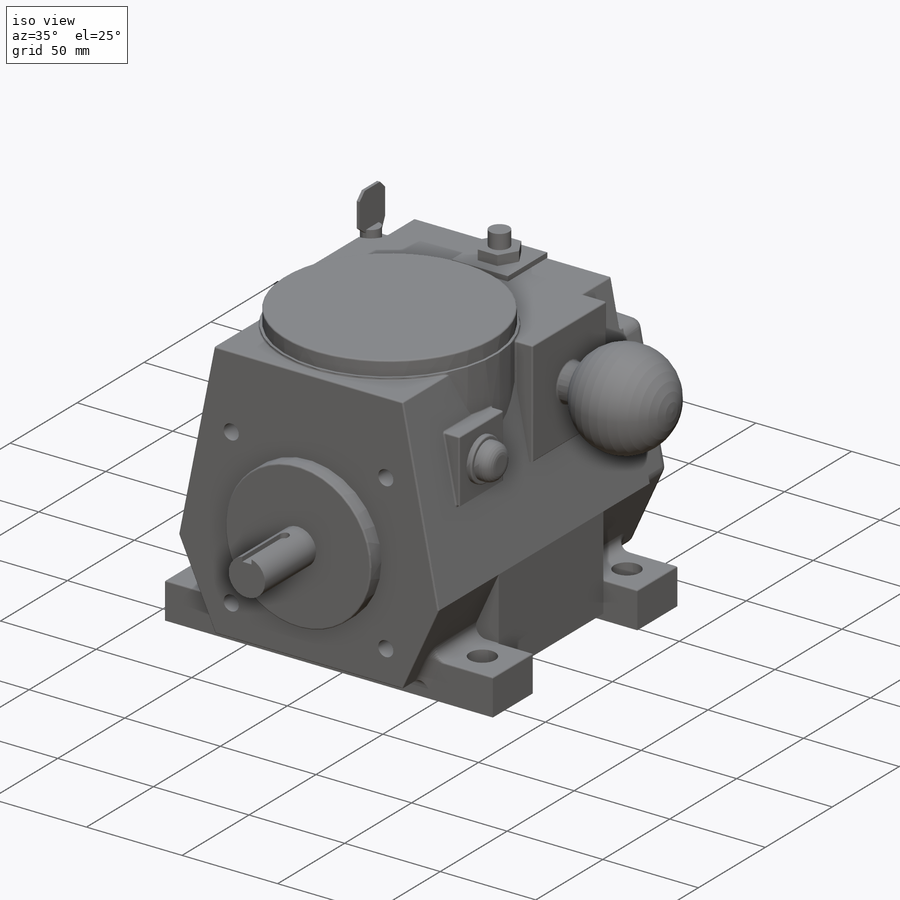
[diagram: iso view]
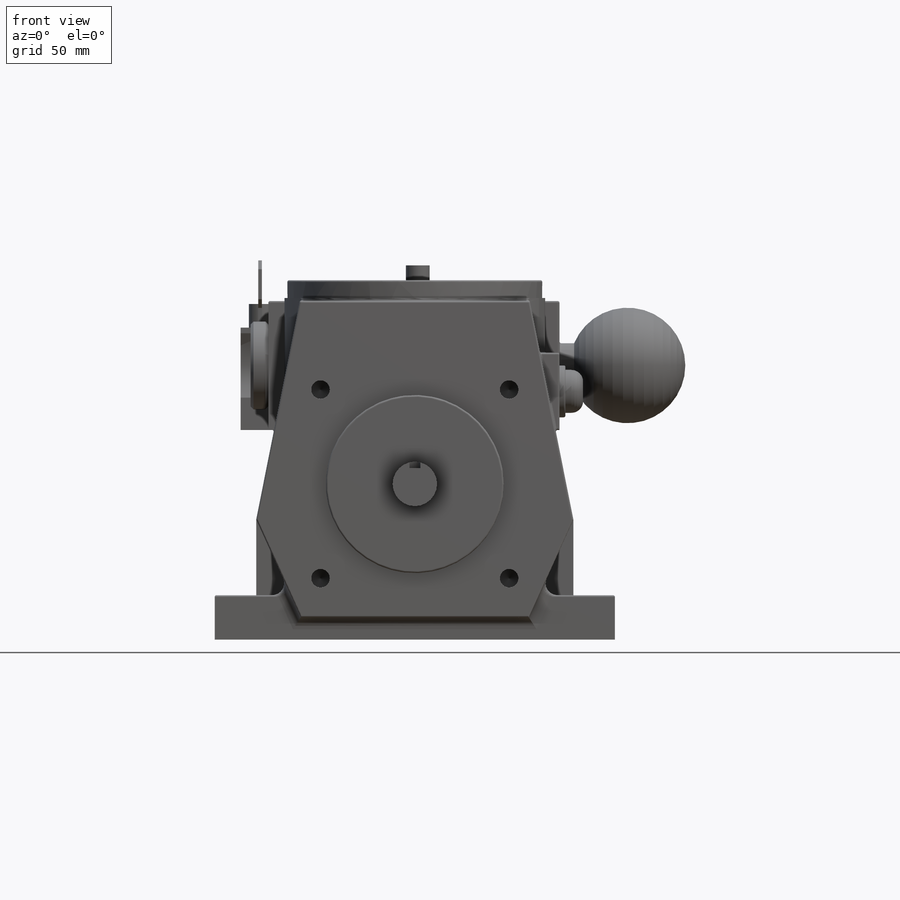
[diagram: front view]
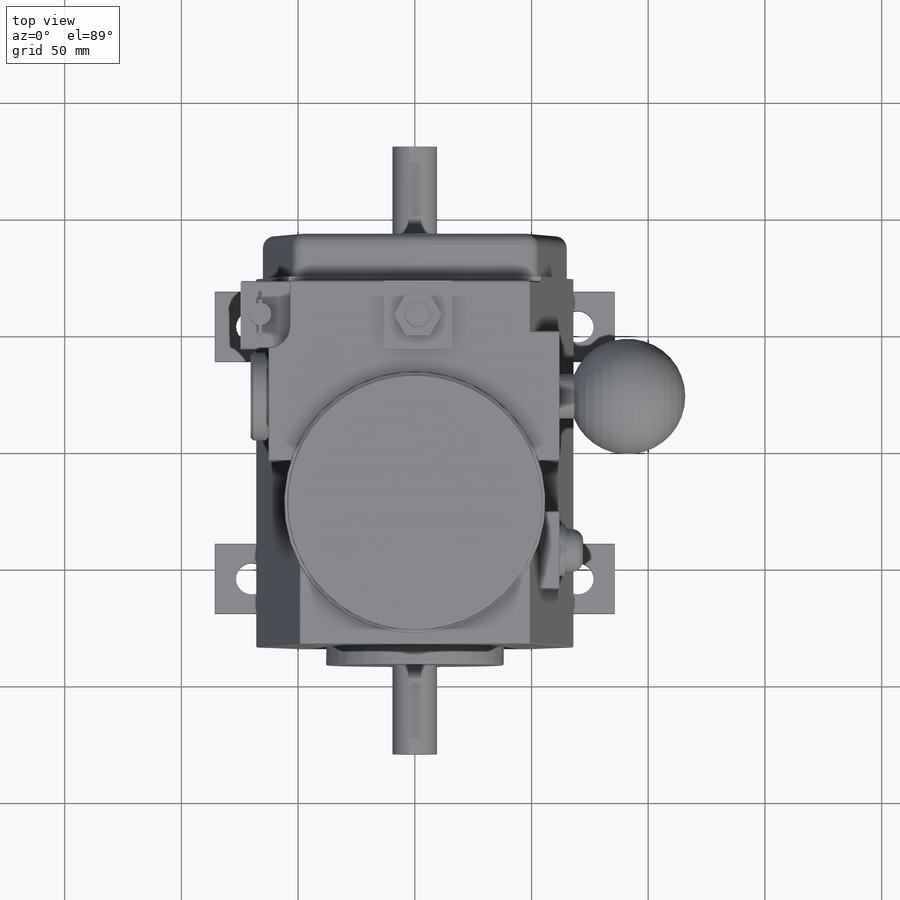
[diagram: top view]
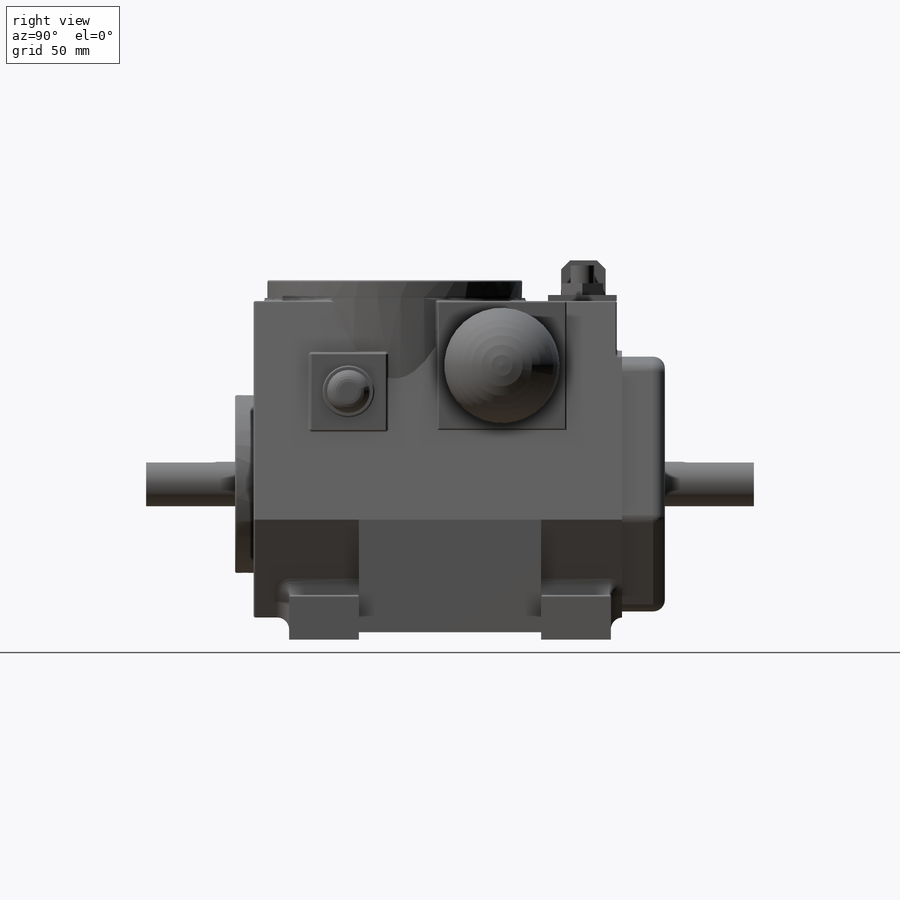
[diagram: right view]
SOLIDWORKS PART (.sldprt)
format: sldprt  version: not decoded by parser v0  size: 1,429,504 bytes
history: native  units: mm
features: sketch x31, extrude x22, plane x8, cut_extrude x6, thread x4, revolve x2, chamfer x2, fillet x2, material x1, mirror x1, hole x1, boolean_combine x1 (+15 scaffold rows collapsed)
feature tree (96):
  scaffold x15  (default folders/planes/origin — collapsed)
  material  "Cast Alloy Steel"
  sketch  "Sketch3"  dims[c1.D3=~13.49375mm c1.D5=17.4625mm c1.D1=171.45mm c1.D2=139.7mm c1.D4=29.845mm c2.D5=107.95mm]
  extrude  "P"  Depth=19.05mm
  plane  "m"  Offset=66.675mm
  sketch  " A"  dims[D2=19.05mm D1=41.275mm]
  extrude  "H"  Depth=260.35mm
  plane  "K"  Offset=38.1mm
  sketch  "B"  dims[D1=76.2mm]
  extrude  "S"  Depth=7.9375mm
  sketch  "Sketch6"  dims[c1.D1=114.3mm c1.D2=68.58mm c1.D3=82.55mm c1.D4=71.12mm c1.D5=35.56mm c1.D6=~2.163454mm c2.D6=185.0deg c2.D2=97.79mm c2.D3=135.89mm c2.D4=107.95mm c2.D5=15.24mm]
  extrude  "K from end"  Depth=38.1mm
  sketch  "Sketch7"  dims[D1=3.175mm]
  extrude  "Boss-Extrude6"  [1 undecoded]
  mirror  "Mirror2"
  plane  "L"  Offset=153.9875mm
  sketch  "Sketch32"  dims[D1=2.54mm D2=0.0mm]
  cut_extrude  "Cut-Extrude6"  Depth=2.54mm
  sketch  "Sketch8"  dims[D1=111.76mm]
  extrude  "Dial"  Depth=84.582mm
  sketch  "Sketch33"  dims[D1=8.89mm]
  extrude  "Boss-Extrude8"  Depth=2.54mm
  sketch  "Sketch34"  dims[D1=0.0mm D2=1.27mm]
  cut_extrude  "Cut-Extrude7"  Depth=7.62mm
  sketch  "Sketch35"  dims[D1=0.0mm D2=2.54mm]
  cut_extrude  "Cut-Extrude8"  Depth=18.415mm
  hole  "F"  Diameter=7.9375mm Depth=26.924mm
  sketch  "C"  dims[c1.D1=114.3mm c1.D2=73.025mm c2.D2=45.0deg]
  sketch  "Sketch36"  dims[hole-wizard template sketch: 50 standard entries collapsed; hole parameters above]
  thread  "Hole Thread9"  Diameter=19.05mm  [1 undecoded]
  thread  "Hole Thread10"  Diameter=19.05mm  [1 undecoded]
  thread  "Hole Thread11"  Diameter=19.05mm  [1 undecoded]
  thread  "Hole Thread12"  Diameter=19.05mm  [1 undecoded]
  plane  "T"  Offset=117.475mm
  plane  "U"  Offset=107.95mm
  plane  "J"  Offset=115.8875mm
  sketch  "Sketch38"  dims[D1=49.53mm D2=9.525mm D3=127.0mm]
  revolve  "Knob"  Angle=360deg
  sketch  "Sketch39"
  extrude  "Boss-Extrude9"  Depth=61.976mm
  plane  "I"  Offset=190.5mm
  sketch  "Sketch41"  dims[D1=10.16mm D2=4.7752mm]
  cut_extrude  "Cut-Extrude9"  Depth=39.116mm
  sketch  "Sketch42"  dims[D1=0.0mm]
  extrude  "Boss-Extrude10"  Depth=124.714mm
  boolean_combine  "Combine1"
  sketch  "Sketch46"  dims[D1=37.592mm]
  extrude  "Boss-Extrude13"  Depth=7.62mm
  chamfer  "Chamfer1"  Distance=1.27mm Angle=45deg
  sketch  "Sketch50"
  extrude  "Boss-Extrude15"  [1 undecoded]
  sketch  "Sketch53"  dims[D1=33.274mm D2=29.464mm]
  extrude  "Boss-Extrude18"  Depth=2.54mm
  sketch  "Sketch54"  dims[D1=17.78mm]
  extrude  "Boss-Extrude19"  Depth=5.08mm
  sketch  "Sketch55"  dims[D1=10.16mm]
  extrude  "Boss-Extrude24"  Depth=7.62mm
  sketch  "Sketch56"  dims[D1=0.0mm]
  extrude  "Boss-Extrude25"  [1 undecoded]
  sketch  "Sketch57"
  extrude  "Boss-Extrude26"  [1 undecoded]
  sketch  "Sketch58"  dims[D1=9.144mm D2=28.575mm]
  cut_extrude  "Cut-Extrude10"  Depth=11.43mm
  sketch  "Sketch59"  dims[D1=0.0mm]
  extrude  "Boss-Extrude27"  [1 undecoded]
  sketch  "Sketch60"  dims[D1=9.525mm D2=12.7mm]
  extrude  "Boss-Extrude28"  Depth=10.16mm
  plane  "Plane1"
  sketch  "Sketch61"  dims[D1=19.05mm D2=27.94mm]
  extrude  "Boss-Extrude29"  Depth=1.524mm
  chamfer  "Chamfer2"  Distance=3.81mm Angle=45deg
  sketch  "Sketch62"  dims[D1=13.843mm]
  cut_extrude  "Cut-Extrude11"  [1 undecoded]
  sketch  "Sketch63"  dims[D1=33.02mm D2=21.59mm]
  extrude  "Boss-Extrude30"  [1 undecoded]
  sketch  "Sketch64"  dims[D1=22.225mm]
  extrude  "Boss-Extrude31"  Depth=2.54mm
  sketch  "Sketch65"  dims[D1=18.415mm]
  extrude  "Boss-Extrude32"  Depth=7.62mm
  fillet  "Fillet1"  Radius=0.762mm
  fillet  "Fillet2"  Radius=5.08mm
  revolve  "Combine2"  [1 undecoded]
decode coverage: 59 of 72 modeling features carry decoded parameters
note: ~ marks probable driven/reference dimensions
note: 12 parameter values undecoded
summary: no parameter record found for 8 features
note: suppression state not decoded; provenance and decode notes live in map.json
